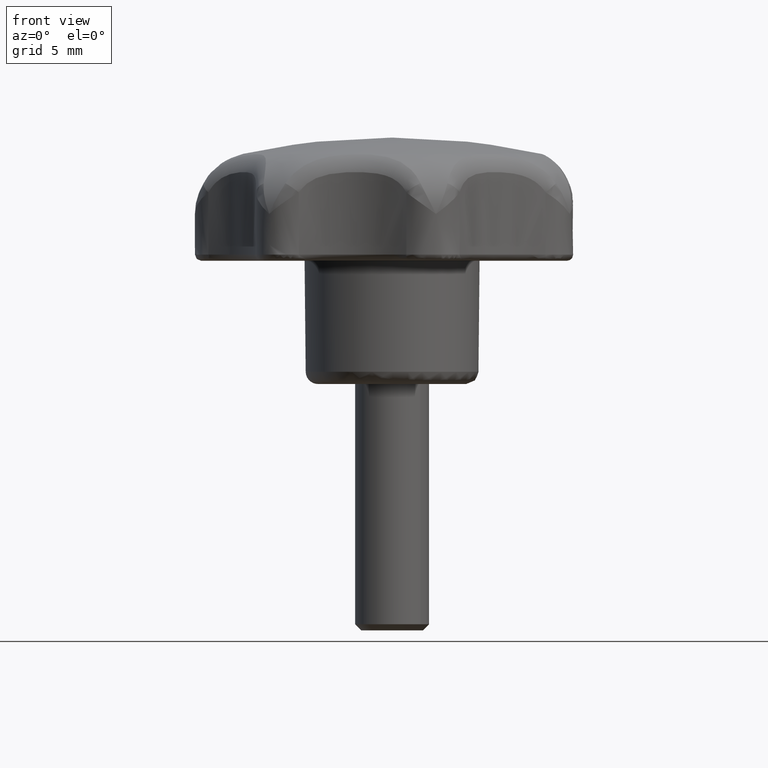
[diagram: clean part render]
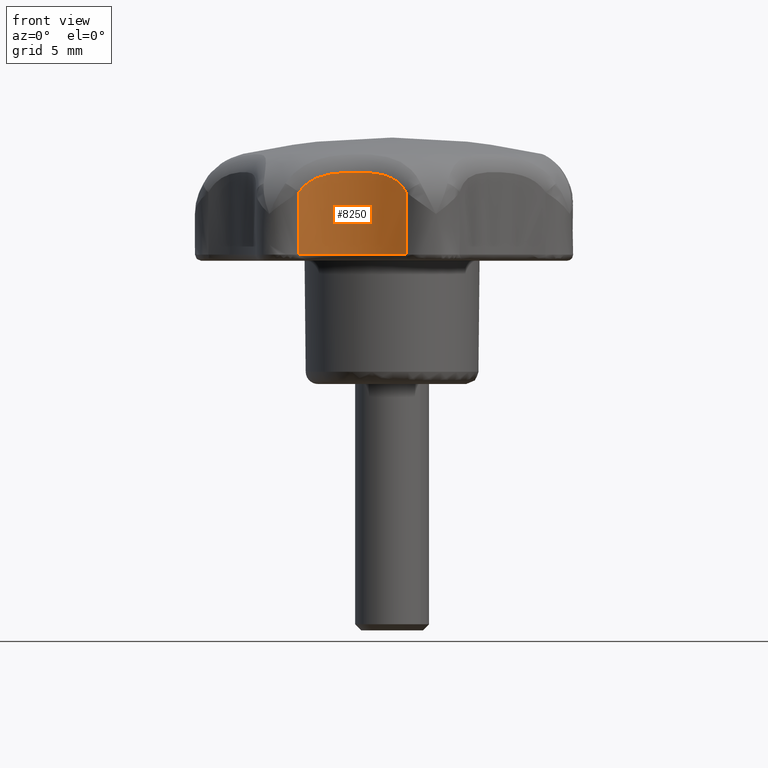
[diagram: same view with one face highlighted and labeled with its STEP entity id]
A machine part, front view. The second image highlights one B-rep face of the part: STEP entity #8250.
In plain terms, the highlighted face is a freeform B-spline surface patch.
Its self-contained STEP definition (entity closure, byte-faithful):
#3164=CARTESIAN_POINT('',(-7.565846936945389,-13.040250881167580,10.500000000000000));
#3165=VERTEX_POINT('',#3164);
#3194=CARTESIAN_POINT('',(1.158638802202466,-15.031558050522500,10.500000000000000));
#3195=VERTEX_POINT('',#3194);
#3208=CARTESIAN_POINT('',(-7.565846936945389,-13.040250881167580,10.500000000000000));
#3209=CARTESIAN_POINT('',(-7.049471129370176,-12.914121934829931,10.499999999999980));
#3210=CARTESIAN_POINT('',(-5.972619576083302,-12.740639507740569,10.500000000000050));
#3211=CARTESIAN_POINT('',(-4.299674976444810,-12.746141878309791,10.499999999999909));
#3212=CARTESIAN_POINT('',(-2.770824496308260,-13.014386965301011,10.500000000000130));
#3213=CARTESIAN_POINT('',(-1.324247360332040,-13.497389790506579,10.499999999999821));
#3214=CARTESIAN_POINT('',(-0.045123457038036,-14.136879781077219,10.500000000000121));
#3215=CARTESIAN_POINT('',(0.785438970412920,-14.724580950751459,10.499999999999940));
#3216=CARTESIAN_POINT('',(1.158638802202466,-15.031558050522500,10.500000000000000));
#3217=B_SPLINE_CURVE_WITH_KNOTS('',3,(#3208,#3209,#3210,#3211,#3212,#3213,#3214,#3215,#3216),.UNSPECIFIED.,.F.,.U.,(4,1,1,1,1,1,4),(9.546341E-009,1.594670009421868,3.261831847693107,5.001469776672767,6.233716603907688,7.828395901749803,9.278093759691622),.UNSPECIFIED.);
#3218=EDGE_CURVE('',#3165,#3195,#3217,.T.);
#7306=CARTESIAN_POINT('',(1.158638802202466,-15.031558050522500,15.546572099976350));
#7307=VERTEX_POINT('',#7306);
#7516=CARTESIAN_POINT('',(-7.565846936945389,-13.040250881167580,15.546571679087700));
#7517=VERTEX_POINT('',#7516);
#7528=CARTESIAN_POINT('',(1.158638802202466,-15.031558050522500,15.546572099976350));
#7529=CARTESIAN_POINT('',(1.065164026232306,-14.954676071826590,15.726396073700959));
#7530=CARTESIAN_POINT('',(0.957347182406112,-14.868810676125721,15.889923676483489));
#7531=CARTESIAN_POINT('',(0.773649479115926,-14.730010050689939,16.112451325671358));
#7532=CARTESIAN_POINT('',(0.708735904510752,-14.682066635363579,16.182813157800851));
#7533=CARTESIAN_POINT('',(0.605652882296464,-14.608027861678529,16.282716931286139));
#7534=CARTESIAN_POINT('',(0.570241723052460,-14.582926673143040,16.315159968730690));
#7535=CARTESIAN_POINT('',(0.497988742784676,-14.532439803527581,16.377735839383568));
#7536=CARTESIAN_POINT('',(0.461198917716971,-14.507088387108791,16.407835446476970));
#7537=CARTESIAN_POINT('',(0.273995934482922,-14.379979094255919,16.552687315847731));
#7538=CARTESIAN_POINT('',(0.113838181152523,-14.277193739690780,16.650558699704568));
#7539=CARTESIAN_POINT('',(-0.098589035458444,-14.149987344658440,16.754355365013868));
#7540=CARTESIAN_POINT('',(-0.141686815340195,-14.124608200246330,16.774184533033189));
#7541=CARTESIAN_POINT('',(-0.229090121259432,-14.074034789004340,16.812072498981511));
#7542=CARTESIAN_POINT('',(-0.273440602167816,-14.048817182217020,16.830144353067531));
#7543=CARTESIAN_POINT('',(-0.407221173648570,-13.974109941901091,16.881456327980100));
#7544=CARTESIAN_POINT('',(-0.497706760490898,-13.925373617482350,16.911951027619260));
#7545=CARTESIAN_POINT('',(-0.772823521642720,-13.782679071609691,16.994043041779179));
#7546=CARTESIAN_POINT('',(-0.961105655895270,-13.692245781731669,17.036312451930161));
#7547=CARTESIAN_POINT('',(-1.346418272068525,-13.522080147503370,17.103315859620889));
#7548=CARTESIAN_POINT('',(-1.543448367492175,-13.442342879853140,17.128041125300200));
#7549=CARTESIAN_POINT('',(-1.845038360622920,-13.331519928998860,17.155979357033001));
#7550=CARTESIAN_POINT('',(-1.946178724536266,-13.296192032358530,17.163713059600791));
#7551=CARTESIAN_POINT('',(-2.148888169580755,-13.229005890263480,17.176538708821820));
#7552=CARTESIAN_POINT('',(-2.250580670290645,-13.197102030643880,17.181641893284940));
#7553=CARTESIAN_POINT('',(-2.556668167776920,-13.106404442731300,17.193642370681552));
#7554=CARTESIAN_POINT('',(-2.762073045155475,-13.052619286776871,17.197310619006029));
#7555=CARTESIAN_POINT('',(-3.175561633513488,-12.958260602642399,17.197301112729829));
#7556=CARTESIAN_POINT('',(-3.383645419261254,-12.917687525654500,17.193621798728980));
#7557=CARTESIAN_POINT('',(-3.802480461730626,-12.849774318322639,17.177677537254521));
#7558=CARTESIAN_POINT('',(-4.013231802756185,-12.822434312233110,17.165417147538712));
#7559=CARTESIAN_POINT('',(-4.437391089767663,-12.781167961058291,17.128491516900780));
#7560=CARTESIAN_POINT('',(-4.651628110223430,-12.767264810511630,17.103645367674400));
#7561=CARTESIAN_POINT('',(-5.074682134152472,-12.753276000431949,17.036386543023401));
#7562=CARTESIAN_POINT('',(-5.284197518449613,-12.753080096079090,16.993960095868839));
#7563=CARTESIAN_POINT('',(-5.594246050542930,-12.762300659171270,16.911760884641261));
#7564=CARTESIAN_POINT('',(-5.696888226639099,-12.766958301124861,16.881253479990711));
#7565=CARTESIAN_POINT('',(-5.900508634649005,-12.779301201016681,16.812915644056851));
#7566=CARTESIAN_POINT('',(-6.001662129271676,-12.787015181372331,16.774974836941158));
#7567=CARTESIAN_POINT('',(-6.297398068606082,-12.813937583286190,16.650459800053440));
#7568=CARTESIAN_POINT('',(-6.485785407958445,-12.837005010730870,16.552787394024001));
#7569=CARTESIAN_POINT('',(-6.753112953678198,-12.876743884980510,16.379930466113841));
#7570=CARTESIAN_POINT('',(-6.839676726397162,-12.890843670727930,16.317913768511630));
#7571=CARTESIAN_POINT('',(-7.007276869914176,-12.920279567365970,16.184191985646692));
#7572=CARTESIAN_POINT('',(-7.087088822728981,-12.935399686732550,16.113442284524080));
#7573=CARTESIAN_POINT('',(-7.313765691019152,-12.980923815901861,15.890134971684940));
#7574=CARTESIAN_POINT('',(-7.448340207141895,-13.011556764833919,15.726290278173360));
#7575=CARTESIAN_POINT('',(-7.565846936945389,-13.040250881167580,15.546571679087700));
#7576=B_SPLINE_CURVE_WITH_KNOTS('',3,(#7528,#7529,#7530,#7531,#7532,#7533,#7534,#7535,#7536,#7537,#7538,#7539,#7540,#7541,#7542,#7543,#7544,#7545,#7546,#7547,#7548,#7549,#7550,#7551,#7552,#7553,#7554,#7555,#7556,#7557,#7558,#7559,#7560,#7561,#7562,#7563,#7564,#7565,#7566,#7567,#7568,#7569,#7570,#7571,#7572,#7573,#7574,#7575),.UNSPECIFIED.,.F.,.U.,(4,2,2,2,2,2,2,2,2,2,2,2,2,2,2,2,2,2,2,2,2,2,2,4),(0.0,0.062500000000000,0.093750000000000,0.109375000000000,0.125000000000000,0.187500000000000,0.203125000000000,0.218749999999999,0.250000000000000,0.312500000000000,0.375000000000000,0.406249999999999,0.437499999999999,0.499999999999999,0.562499999999999,0.624999999999999,0.687499999999999,0.749999999999999,0.781249999999999,0.812499999999999,0.874999999999999,0.906249999999999,0.937500000000000,1.0),.UNSPECIFIED.);
#7577=EDGE_CURVE('',#7307,#7517,#7576,.T.);
#8222=CARTESIAN_POINT('',(1.468749428913296,-15.297421924984720,17.364738517240070));
#8223=CARTESIAN_POINT('',(1.468749428913296,-15.297421924984720,10.328381537068999));
#8224=CARTESIAN_POINT('',(-2.669975626522718,-11.599908430984238,17.364738517240077));
#8225=CARTESIAN_POINT('',(-2.669975626522718,-11.599908430984238,10.328381537068999));
#8226=CARTESIAN_POINT('',(-7.997233198415432,-13.155857622160223,17.364738517240074));
#8227=CARTESIAN_POINT('',(-7.997233198415432,-13.155857622160223,10.328381537068998));
#8235=(BOUNDED_SURFACE()B_SPLINE_SURFACE(1,2,((#8222,#8224,#8226),(#8223,#8225,#8227)),.UNSPECIFIED.,.F.,.F.,.U.)B_SPLINE_SURFACE_WITH_KNOTS((2,2),(3,3),(0.0,7.036356980171076),(0.0,10.355653933939340),.UNSPECIFIED.)GEOMETRIC_REPRESENTATION_ITEM()RATIONAL_B_SPLINE_SURFACE(((1.0,0.870543755034141,0.991268064204020),(1.0,0.870543755034141,0.991268064204020)))REPRESENTATION_ITEM('')SURFACE());
#8236=CARTESIAN_POINT('',(-7.565846936945389,-13.040250881167580,15.546571679087700));
#8237=CARTESIAN_POINT('',(-7.565846936945389,-13.040250881167580,10.500000000000000));
#8238=QUASI_UNIFORM_CURVE('',1,(#8236,#8237),.UNSPECIFIED.,.F.,.U.);
#8239=EDGE_CURVE('',#7517,#3165,#8238,.T.);
#8240=ORIENTED_EDGE('',*,*,#8239,.T.);
#8241=ORIENTED_EDGE('',*,*,#3218,.T.);
#8242=CARTESIAN_POINT('',(1.158638802202466,-15.031558050522500,15.546572099976350));
#8243=CARTESIAN_POINT('',(1.158638802202466,-15.031558050522500,10.500000000000000));
#8244=QUASI_UNIFORM_CURVE('',1,(#8242,#8243),.UNSPECIFIED.,.F.,.U.);
#8245=EDGE_CURVE('',#7307,#3195,#8244,.T.);
#8246=ORIENTED_EDGE('',*,*,#8245,.F.);
#8247=ORIENTED_EDGE('',*,*,#7577,.T.);
#8248=EDGE_LOOP('',(#8240,#8241,#8246,#8247));
#8249=FACE_OUTER_BOUND('',#8248,.T.);
#8250=ADVANCED_FACE('',(#8249),#8235,.F.);